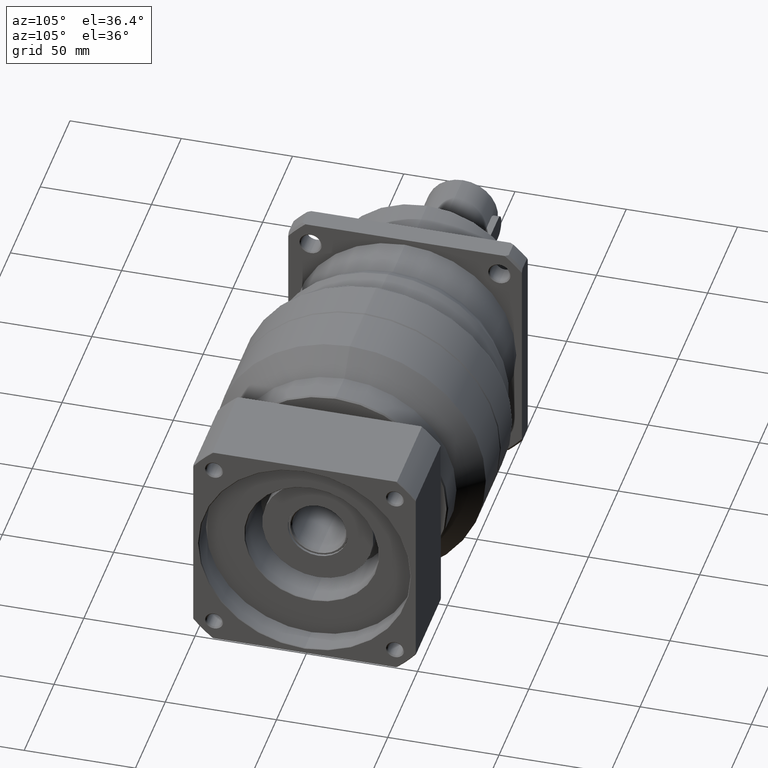
[diagram: clean part render]
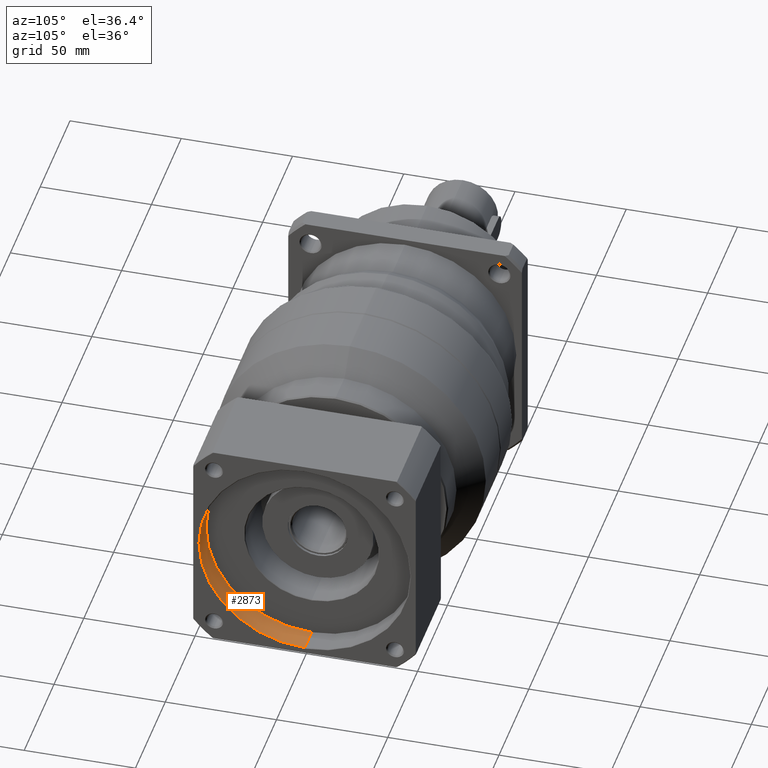
[diagram: same view with one face highlighted and labeled with its STEP entity id]
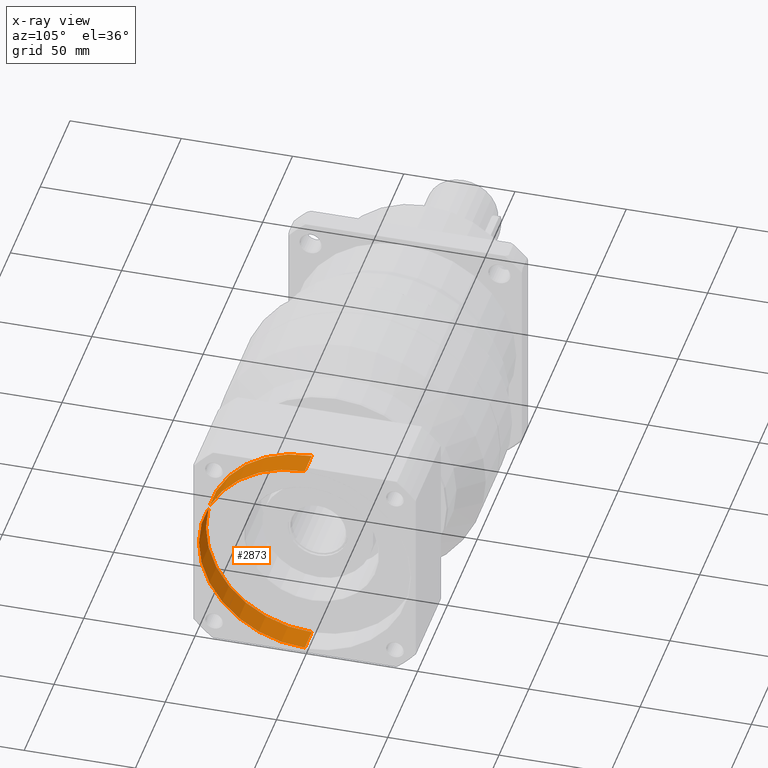
[diagram: x-ray of the same camera — body ghosted, the highlighted face saturated]
A machine part, auxiliary view. The second image highlights one B-rep face of the part: STEP entity #2873.
The next image is the same camera in x-ray: the body ghosted, the highlighted face saturated — about 0% of this face is hidden behind the body in this view.
In plain terms, the highlighted cylindrical surface (partial cylindrical patch) has radius 47.5358 mm, axis along (-1, -0, -0).
Its self-contained STEP definition (entity closure, byte-faithful):
#284 = ORIENTED_EDGE ( 'NONE', *, *, #372, .T. ) ;
#292 = DIRECTION ( 'NONE',  ( -1.000000000000000000, -0.0000000000000000000, -0.0000000000000000000 ) ) ;
#372 = EDGE_CURVE ( 'NONE', #4130, #1125, #1696, .T. ) ;
#482 = EDGE_CURVE ( 'NONE', #1722, #1446, #4283, .T. ) ;
#539 = CARTESIAN_POINT ( 'NONE',  ( 258.1575113225261500, 4.633161260266394500, 47.53578164226802700 ) ) ;
#564 = DIRECTION ( 'NONE',  ( -1.000000000000000000, -0.0000000000000000000, -0.0000000000000000000 ) ) ;
#675 = EDGE_CURVE ( 'NONE', #1722, #4130, #4096, .T. ) ;
#884 = VECTOR ( 'NONE', #4566, 1000.000000000000000 ) ;
#959 = AXIS2_PLACEMENT_3D ( 'NONE', #3670, #3708, #2503 ) ;
#1125 = VERTEX_POINT ( 'NONE', #539 ) ;
#1141 = ORIENTED_EDGE ( 'NONE', *, *, #4224, .F. ) ;
#1163 = AXIS2_PLACEMENT_3D ( 'NONE', #3988, #2007, #2406 ) ;
#1446 = VERTEX_POINT ( 'NONE', #1593 ) ;
#1593 = CARTESIAN_POINT ( 'NONE',  ( 269.8575151923450300, 4.633161260266394500, 47.53578164226805600 ) ) ;
#1696 = CIRCLE ( 'NONE', #3067, 47.53578164226802700 ) ;
#1722 = VERTEX_POINT ( 'NONE', #4604 ) ;
#1885 = CARTESIAN_POINT ( 'NONE',  ( 258.1575113225261500, 4.633161260266394500, 0.0000000000000000000 ) ) ;
#2007 = DIRECTION ( 'NONE',  ( -1.000000000000000000, -0.0000000000000000000, -0.0000000000000000000 ) ) ;
#2090 = CARTESIAN_POINT ( 'NONE',  ( 3.651376329708235300, 4.633161260266394500, 47.53578164226804100 ) ) ;
#2191 = VECTOR ( 'NONE', #564, 1000.000000000000000 ) ;
#2251 = LINE ( 'NONE', #2090, #2191 ) ;
#2393 = EDGE_LOOP ( 'NONE', ( #2725, #3472, #284, #1141 ) ) ;
#2406 = DIRECTION ( 'NONE',  ( 0.0000000000000000000, 0.0000000000000000000, 1.000000000000000000 ) ) ;
#2468 = CARTESIAN_POINT ( 'NONE',  ( 258.1575113225261500, 4.633161260266400700, -47.53578164226802700 ) ) ;
#2503 = DIRECTION ( 'NONE',  ( 0.0000000000000000000, 0.0000000000000000000, 1.000000000000000000 ) ) ;
#2725 = ORIENTED_EDGE ( 'NONE', *, *, #482, .F. ) ;
#2873 = ADVANCED_FACE ( 'NONE', ( #3431 ), #4594, .F. ) ;
#3067 = AXIS2_PLACEMENT_3D ( 'NONE', #1885, #292, #5122 ) ;
#3431 = FACE_OUTER_BOUND ( 'NONE', #2393, .T. ) ;
#3472 = ORIENTED_EDGE ( 'NONE', *, *, #675, .T. ) ;
#3670 = CARTESIAN_POINT ( 'NONE',  ( 3.651376329708235300, 4.633161260266394500, 0.0000000000000000000 ) ) ;
#3708 = DIRECTION ( 'NONE',  ( -1.000000000000000000, -0.0000000000000000000, -0.0000000000000000000 ) ) ;
#3711 = CARTESIAN_POINT ( 'NONE',  ( 3.651376329708235300, 4.633161260266400700, -47.53578164226804100 ) ) ;
#3988 = CARTESIAN_POINT ( 'NONE',  ( 269.8575151923450300, 4.633161260266394500, 0.0000000000000000000 ) ) ;
#4096 = LINE ( 'NONE', #3711, #884 ) ;
#4130 = VERTEX_POINT ( 'NONE', #2468 ) ;
#4224 = EDGE_CURVE ( 'NONE', #1446, #1125, #2251, .T. ) ;
#4283 = CIRCLE ( 'NONE', #1163, 47.53578164226805600 ) ;
#4566 = DIRECTION ( 'NONE',  ( -1.000000000000000000, -0.0000000000000000000, -0.0000000000000000000 ) ) ;
#4594 = CYLINDRICAL_SURFACE ( 'NONE', #959, 47.53578164226804100 ) ;
#4604 = CARTESIAN_POINT ( 'NONE',  ( 269.8575151923450300, 4.633161260266400700, -47.53578164226805600 ) ) ;
#5122 = DIRECTION ( 'NONE',  ( 0.0000000000000000000, 0.0000000000000000000, 1.000000000000000000 ) ) ;